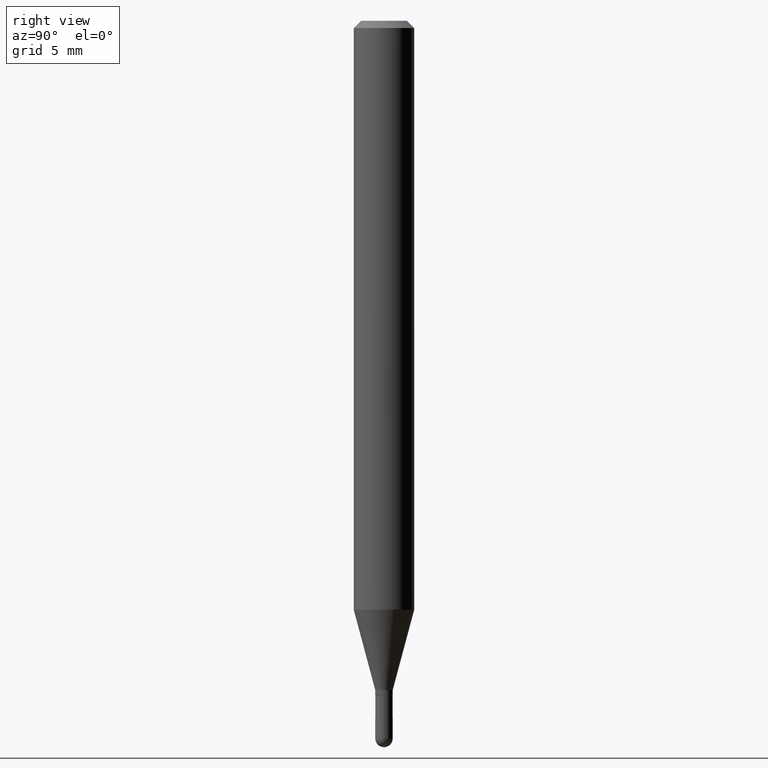
[diagram: clean part render]
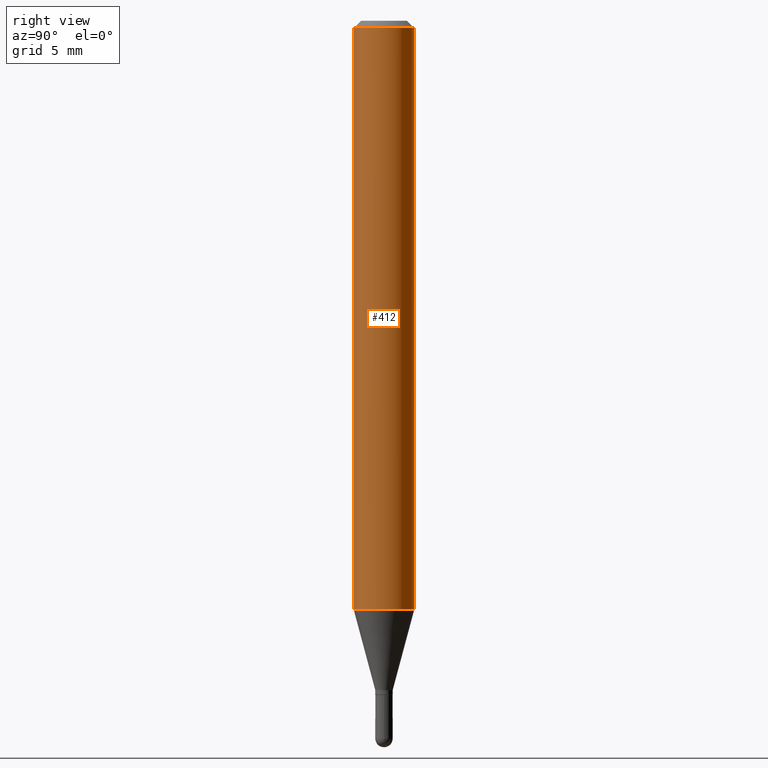
[diagram: same view with one face highlighted and labeled with its STEP entity id]
A machine part, right view. The second image highlights one B-rep face of the part: STEP entity #412.
In plain terms, the highlighted cylindrical surface (edge-blend (fillet) strip) has radius 1.5875 mm, axis along (-0, 0, 1).
Its self-contained STEP definition (entity closure, byte-faithful):
#3 = EDGE_CURVE ( 'NONE', #39, #217, #180, .T. ) ;
#14 = DIRECTION ( 'NONE',  ( -2.445459386778568343E-29, 3.491494827969470629E-15, 1.000000000000000000 ) ) ;
#16 = CARTESIAN_POINT ( 'NONE',  ( 3.668189080167854844E-31, -5.237242241954208804E-17, -0.01500000000000000812 ) ) ;
#28 = DIRECTION ( 'NONE',  ( -6.982962677686265922E-15, -1.000000000000000000, 4.370956789862821150E-15 ) ) ;
#39 = VERTEX_POINT ( 'NONE', #145 ) ;
#60 = ORIENTED_EDGE ( 'NONE', *, *, #64, .T. ) ;
#64 = EDGE_CURVE ( 'NONE', #291, #39, #439, .T. ) ;
#99 = CARTESIAN_POINT ( 'NONE',  ( 4.440892098500625669E-16, 0.06250000000000000000, -2.182184267480919143E-16 ) ) ;
#119 = CIRCLE ( 'NONE', #398, 0.06250000000000000000 ) ;
#141 = CYLINDRICAL_SURFACE ( 'NONE', #475, 0.06250000000000000000 ) ;
#145 = CARTESIAN_POINT ( 'NONE',  ( 4.440892098500920998E-16, 0.06249999999999573952, -1.215923739063185627 ) ) ;
#155 = CARTESIAN_POINT ( 'NONE',  ( 2.973492121298961369E-29, -4.245391446144412231E-15, -1.215923739063185405 ) ) ;
#167 = DIRECTION ( 'NONE',  ( -2.445459386778568343E-29, 3.491494827969470629E-15, 1.000000000000000000 ) ) ;
#171 = DIRECTION ( 'NONE',  ( -6.982962677686265922E-15, -1.000000000000000000, 3.491494827969470629E-15 ) ) ;
#180 = LINE ( 'NONE', #99, #250 ) ;
#182 = VECTOR ( 'NONE', #167, 39.37007874015748143 ) ;
#217 = VERTEX_POINT ( 'NONE', #285 ) ;
#250 = VECTOR ( 'NONE', #262, 39.37007874015748143 ) ;
#262 = DIRECTION ( 'NONE',  ( -2.445459386778568343E-29, 3.491494827969470629E-15, 1.000000000000000000 ) ) ;
#284 = ORIENTED_EDGE ( 'NONE', *, *, #3, .T. ) ;
#285 = CARTESIAN_POINT ( 'NONE',  ( 4.440892098500924943E-16, 0.06249999999999993755, -0.01500000000000022669 ) ) ;
#291 = VERTEX_POINT ( 'NONE', #443 ) ;
#292 = CARTESIAN_POINT ( 'NONE',  ( -4.364351673553912750E-16, -0.06250000000000005551, -0.01499999999999979128 ) ) ;
#306 = DIRECTION ( 'NONE',  ( -2.445459386778568343E-29, 3.491494827969470629E-15, 1.000000000000000000 ) ) ;
#328 = CARTESIAN_POINT ( 'NONE',  ( -4.364351673553916201E-16, -0.06250000000000000000, 2.182184267480919143E-16 ) ) ;
#368 = LINE ( 'NONE', #328, #182 ) ;
#387 = AXIS2_PLACEMENT_3D ( 'NONE', #155, #306, #28 ) ;
#398 = AXIS2_PLACEMENT_3D ( 'NONE', #16, #488, #450 ) ;
#406 = ORIENTED_EDGE ( 'NONE', *, *, #473, .F. ) ;
#409 = ORIENTED_EDGE ( 'NONE', *, *, #481, .F. ) ;
#412 = ADVANCED_FACE ( 'NONE', ( #496 ), #141, .T. ) ;
#439 = CIRCLE ( 'NONE', #387, 0.06250000000000000000 ) ;
#443 = CARTESIAN_POINT ( 'NONE',  ( -4.364351673553620378E-16, -0.06250000000000426048, -1.215923739063185183 ) ) ;
#450 = DIRECTION ( 'NONE',  ( -6.982962677686265922E-15, -1.000000000000000000, 3.483106191921935554E-15 ) ) ;
#451 = EDGE_LOOP ( 'NONE', ( #60, #284, #409, #406 ) ) ;
#454 = CARTESIAN_POINT ( 'NONE',  ( 0.000000000000000000, 0.000000000000000000, 0.000000000000000000 ) ) ;
#473 = EDGE_CURVE ( 'NONE', #291, #494, #368, .T. ) ;
#475 = AXIS2_PLACEMENT_3D ( 'NONE', #454, #14, #171 ) ;
#481 = EDGE_CURVE ( 'NONE', #494, #217, #119, .T. ) ;
#488 = DIRECTION ( 'NONE',  ( -2.445459386778568343E-29, 3.491494827969470629E-15, 1.000000000000000000 ) ) ;
#494 = VERTEX_POINT ( 'NONE', #292 ) ;
#496 = FACE_OUTER_BOUND ( 'NONE', #451, .T. ) ;